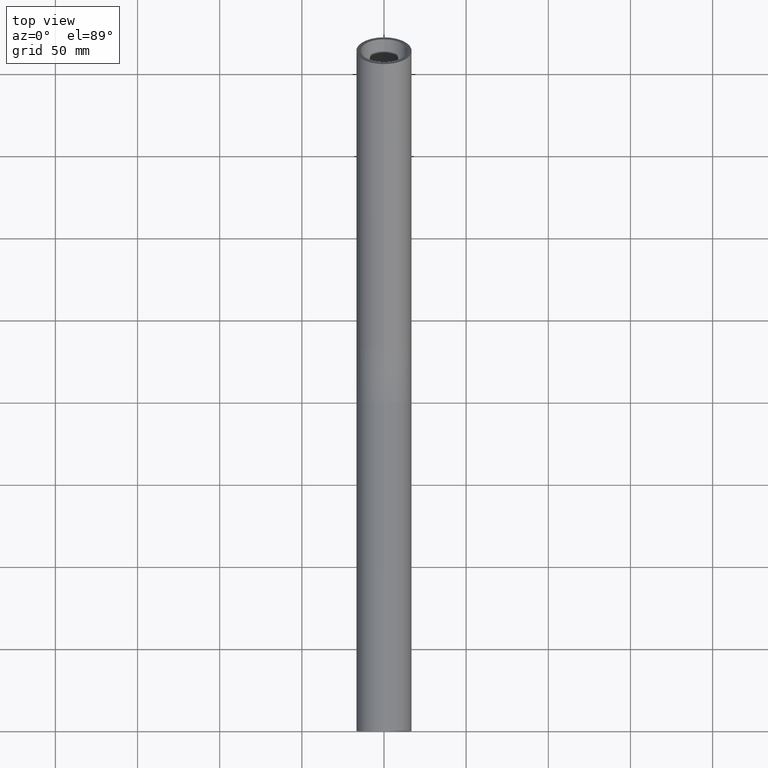
[diagram: clean part render]
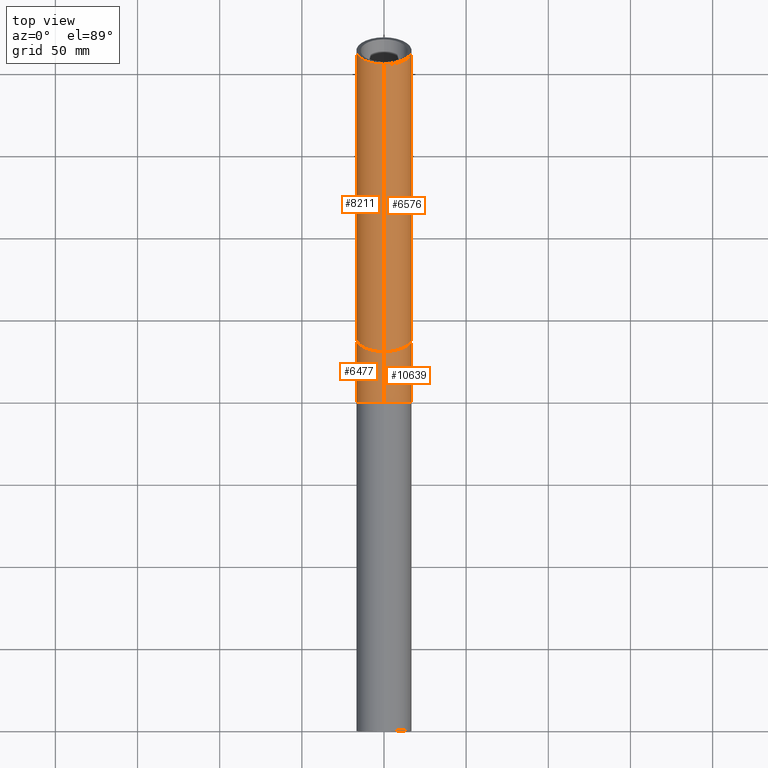
[diagram: same view with one multi-face feature highlighted, each face labeled with its STEP entity id]
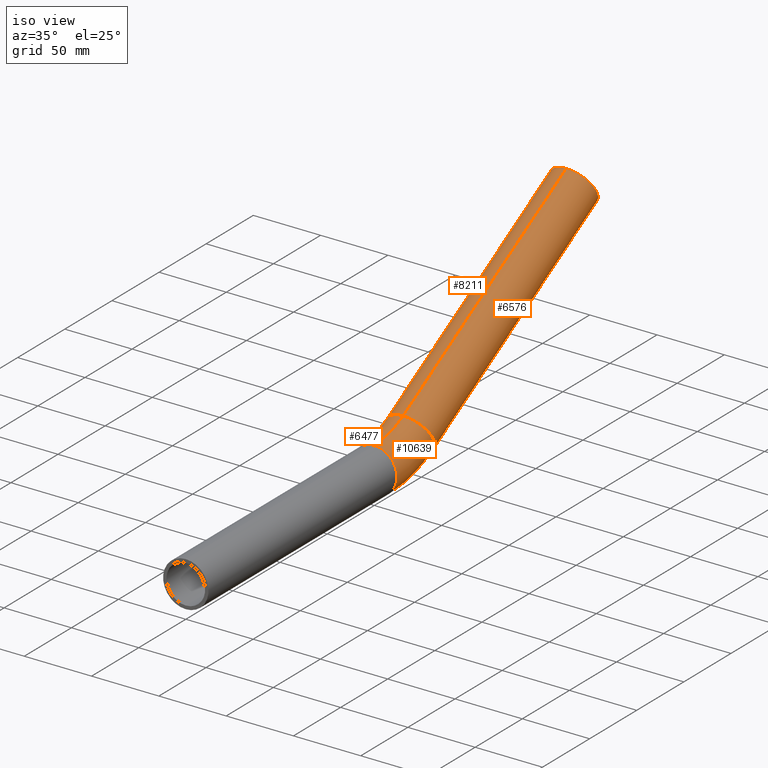
[diagram: same view with one multi-face feature highlighted, each face labeled with its STEP entity id]
A machine part, top view. The highlighted faces form ONE feature: a constant-radius fillet chain: 4 tangent blend faces with common blend radius 16.85 mm. The faces share edges in the B-rep.
A second angle (iso view) of the same feature is appended — it is thin or edge-on in the first view.
Their STEP definitions:
[1] entity #6477 (Torus):
#104 = DIRECTION ( 'NONE',  ( 1.000000000000000000, 0.0000000000000000000, 0.0000000000000000000 ) ) ;
#540 = EDGE_CURVE ( 'NONE', #3663, #10542, #5495, .T. ) ;
#1718 = EDGE_LOOP ( 'NONE', ( #8742, #1725, #10595, #5965 ) ) ;
#1725 = ORIENTED_EDGE ( 'NONE', *, *, #7093, .T. ) ;
#1768 = AXIS2_PLACEMENT_3D ( 'NONE', #6704, #2238, #8437 ) ;
#2199 = CARTESIAN_POINT ( 'NONE',  ( 0.0000000000000000000, 200.0000000000000000, -16.85000000000000100 ) ) ;
#2238 = DIRECTION ( 'NONE',  ( 0.0000000000000000000, 1.000000000000000000, 0.0000000000000000000 ) ) ;
#2245 = CIRCLE ( 'NONE', #1768, 16.85000000000000100 ) ;
#2836 = DIRECTION ( 'NONE',  ( 1.000000000000000000, 0.0000000000000000000, 0.0000000000000000000 ) ) ;
#3353 = TOROIDAL_SURFACE ( 'NONE', #11443, 78.00000000000000000, 16.85000000000000100 ) ;
#3417 = CARTESIAN_POINT ( 'NONE',  ( 0.0000000000000000000, 230.5750000000000700, 25.04254655858161600 ) ) ;
#3663 = VERTEX_POINT ( 'NONE', #6261 ) ;
#4562 = VERTEX_POINT ( 'NONE', #2199 ) ;
#4596 = CARTESIAN_POINT ( 'NONE',  ( 0.0000000000000000000, 200.0000000000000000, 78.00000000000000000 ) ) ;
#4645 = DIRECTION ( 'NONE',  ( 0.0000000000000000000, -0.5000000000000008900, 0.8660254037844380400 ) ) ;
#4872 = CIRCLE ( 'NONE', #11497, 94.85000000000000900 ) ;
#5411 = CIRCLE ( 'NONE', #7553, 16.85000000000000100 ) ;
#5463 = CARTESIAN_POINT ( 'NONE',  ( 0.0000000000000000000, 200.0000000000000000, 78.00000000000000000 ) ) ;
#5495 = CIRCLE ( 'NONE', #6186, 61.14999999999999900 ) ;
#5523 = DIRECTION ( 'NONE',  ( 0.0000000000000000000, 0.0000000000000000000, -1.000000000000000000 ) ) ;
#5965 = ORIENTED_EDGE ( 'NONE', *, *, #9974, .F. ) ;
#6186 = AXIS2_PLACEMENT_3D ( 'NONE', #8953, #2836, #5523 ) ;
#6261 = CARTESIAN_POINT ( 'NONE',  ( 2.063529856563290200E-015, 200.0000000000000000, 16.85000000000000100 ) ) ;
#6477 = ADVANCED_FACE ( 'NONE', ( #9038 ), #3353, .T. ) ;
#6704 = CARTESIAN_POINT ( 'NONE',  ( 0.0000000000000000000, 200.0000000000000000, 0.0000000000000000000 ) ) ;
#7093 = EDGE_CURVE ( 'NONE', #4562, #3663, #2245, .T. ) ;
#7553 = AXIS2_PLACEMENT_3D ( 'NONE', #9914, #9141, #4645 ) ;
#7677 = CARTESIAN_POINT ( 'NONE',  ( 2.063529856563290600E-015, 247.4250000000001300, -4.142509548953944100 ) ) ;
#8282 = DIRECTION ( 'NONE',  ( 0.0000000000000000000, 0.0000000000000000000, -1.000000000000000000 ) ) ;
#8437 = DIRECTION ( 'NONE',  ( 0.0000000000000000000, 0.0000000000000000000, 1.000000000000000000 ) ) ;
#8742 = ORIENTED_EDGE ( 'NONE', *, *, #10283, .F. ) ;
#8953 = CARTESIAN_POINT ( 'NONE',  ( -2.063529856563290200E-015, 200.0000000000000000, 78.00000000000000000 ) ) ;
#9038 = FACE_OUTER_BOUND ( 'NONE', #1718, .T. ) ;
#9141 = DIRECTION ( 'NONE',  ( 0.0000000000000000000, 0.8660254037844380400, 0.5000000000000011100 ) ) ;
#9895 = DIRECTION ( 'NONE',  ( 0.0000000000000000000, 0.0000000000000000000, -1.000000000000000000 ) ) ;
#9914 = CARTESIAN_POINT ( 'NONE',  ( 0.0000000000000000000, 239.0000000000001100, 10.45001850481383500 ) ) ;
#9934 = DIRECTION ( 'NONE',  ( 1.000000000000000000, 0.0000000000000000000, 0.0000000000000000000 ) ) ;
#9974 = EDGE_CURVE ( 'NONE', #11383, #10542, #5411, .T. ) ;
#10283 = EDGE_CURVE ( 'NONE', #4562, #11383, #4872, .T. ) ;
#10542 = VERTEX_POINT ( 'NONE', #3417 ) ;
#10595 = ORIENTED_EDGE ( 'NONE', *, *, #540, .T. ) ;
#11383 = VERTEX_POINT ( 'NONE', #7677 ) ;
#11443 = AXIS2_PLACEMENT_3D ( 'NONE', #4596, #9934, #8282 ) ;
#11497 = AXIS2_PLACEMENT_3D ( 'NONE', #5463, #104, #9895 ) ;
[2] entity #8211 (Cylinder):
#356 = CARTESIAN_POINT ( 'NONE',  ( 0.0000000000000000000, 230.5750000000000700, 25.04254655858161600 ) ) ;
#568 = DIRECTION ( 'NONE',  ( 0.0000000000000000000, -0.5000000000000008900, 0.8660254037844380400 ) ) ;
#603 = CARTESIAN_POINT ( 'NONE',  ( 0.0000000000000000000, 239.0000000000001100, 10.45001850481383500 ) ) ;
#671 = CARTESIAN_POINT ( 'NONE',  ( 0.0000000000000000000, 403.7800807568876300, 125.0425465585818800 ) ) ;
#854 = VECTOR ( 'NONE', #2312, 1000.000000000000200 ) ;
#1603 = DIRECTION ( 'NONE',  ( 0.0000000000000000000, 0.8660254037844380400, 0.5000000000000011100 ) ) ;
#2312 = DIRECTION ( 'NONE',  ( 0.0000000000000000000, 0.8660254037844378200, 0.5000000000000013300 ) ) ;
#2368 = DIRECTION ( 'NONE',  ( 0.0000000000000000000, 0.8660254037844378200, 0.5000000000000013300 ) ) ;
#2504 = FACE_OUTER_BOUND ( 'NONE', #7285, .T. ) ;
#2525 = ORIENTED_EDGE ( 'NONE', *, *, #9974, .T. ) ;
#2616 = ORIENTED_EDGE ( 'NONE', *, *, #10464, .F. ) ;
#3417 = CARTESIAN_POINT ( 'NONE',  ( 0.0000000000000000000, 230.5750000000000700, 25.04254655858161600 ) ) ;
#3460 = DIRECTION ( 'NONE',  ( 0.0000000000000000000, -0.5000000000000010000, 0.8660254037844380400 ) ) ;
#3890 = ORIENTED_EDGE ( 'NONE', *, *, #4176, .T. ) ;
#4176 = EDGE_CURVE ( 'NONE', #10542, #11068, #7537, .T. ) ;
#4372 = EDGE_CURVE ( 'NONE', #10818, #11068, #11140, .T. ) ;
#4645 = DIRECTION ( 'NONE',  ( 0.0000000000000000000, -0.5000000000000008900, 0.8660254037844380400 ) ) ;
#5132 = LINE ( 'NONE', #8706, #6521 ) ;
#5226 = AXIS2_PLACEMENT_3D ( 'NONE', #603, #2368, #568 ) ;
#5411 = CIRCLE ( 'NONE', #7553, 16.85000000000000100 ) ;
#6521 = VECTOR ( 'NONE', #9637, 1000.000000000000200 ) ;
#6951 = CARTESIAN_POINT ( 'NONE',  ( 0.0000000000000000000, 412.2050807568876400, 110.4500185048141100 ) ) ;
#7233 = ORIENTED_EDGE ( 'NONE', *, *, #4372, .F. ) ;
#7285 = EDGE_LOOP ( 'NONE', ( #2616, #2525, #3890, #7233 ) ) ;
#7537 = LINE ( 'NONE', #356, #854 ) ;
#7553 = AXIS2_PLACEMENT_3D ( 'NONE', #9914, #9141, #4645 ) ;
#7574 = AXIS2_PLACEMENT_3D ( 'NONE', #6951, #1603, #3460 ) ;
#7677 = CARTESIAN_POINT ( 'NONE',  ( 2.063529856563290600E-015, 247.4250000000001300, -4.142509548953944100 ) ) ;
#8127 = CARTESIAN_POINT ( 'NONE',  ( 2.063529856563290600E-015, 420.6300807568877100, 95.85749045104631700 ) ) ;
#8211 = ADVANCED_FACE ( 'NONE', ( #2504 ), #8733, .T. ) ;
#8706 = CARTESIAN_POINT ( 'NONE',  ( 2.063529856563290600E-015, 247.4250000000001300, -4.142509548953945900 ) ) ;
#8733 = CYLINDRICAL_SURFACE ( 'NONE', #5226, 16.85000000000000100 ) ;
#9141 = DIRECTION ( 'NONE',  ( 0.0000000000000000000, 0.8660254037844380400, 0.5000000000000011100 ) ) ;
#9637 = DIRECTION ( 'NONE',  ( 0.0000000000000000000, 0.8660254037844378200, 0.5000000000000013300 ) ) ;
#9914 = CARTESIAN_POINT ( 'NONE',  ( 0.0000000000000000000, 239.0000000000001100, 10.45001850481383500 ) ) ;
#9974 = EDGE_CURVE ( 'NONE', #11383, #10542, #5411, .T. ) ;
#10464 = EDGE_CURVE ( 'NONE', #11383, #10818, #5132, .T. ) ;
#10542 = VERTEX_POINT ( 'NONE', #3417 ) ;
#10818 = VERTEX_POINT ( 'NONE', #8127 ) ;
#11068 = VERTEX_POINT ( 'NONE', #671 ) ;
#11140 = CIRCLE ( 'NONE', #7574, 16.84999999999999400 ) ;
#11383 = VERTEX_POINT ( 'NONE', #7677 ) ;
[3] entity #6576 (Cylinder):
#56 = EDGE_LOOP ( 'NONE', ( #10862, #4067, #6885, #2541 ) ) ;
#126 = CIRCLE ( 'NONE', #6919, 16.85000000000000100 ) ;
#356 = CARTESIAN_POINT ( 'NONE',  ( 0.0000000000000000000, 230.5750000000000700, 25.04254655858161600 ) ) ;
#671 = CARTESIAN_POINT ( 'NONE',  ( 0.0000000000000000000, 403.7800807568876300, 125.0425465585818800 ) ) ;
#770 = DIRECTION ( 'NONE',  ( 0.0000000000000000000, -0.5000000000000008900, 0.8660254037844380400 ) ) ;
#854 = VECTOR ( 'NONE', #2312, 1000.000000000000200 ) ;
#1642 = DIRECTION ( 'NONE',  ( 0.0000000000000000000, -0.5000000000000010000, 0.8660254037844380400 ) ) ;
#2312 = DIRECTION ( 'NONE',  ( 0.0000000000000000000, 0.8660254037844378200, 0.5000000000000013300 ) ) ;
#2541 = ORIENTED_EDGE ( 'NONE', *, *, #4176, .F. ) ;
#2586 = AXIS2_PLACEMENT_3D ( 'NONE', #9531, #6909, #1642 ) ;
#2968 = CARTESIAN_POINT ( 'NONE',  ( 0.0000000000000000000, 239.0000000000001100, 10.45001850481383500 ) ) ;
#3417 = CARTESIAN_POINT ( 'NONE',  ( 0.0000000000000000000, 230.5750000000000700, 25.04254655858161600 ) ) ;
#3781 = CYLINDRICAL_SURFACE ( 'NONE', #4331, 16.85000000000000100 ) ;
#4067 = ORIENTED_EDGE ( 'NONE', *, *, #10464, .T. ) ;
#4176 = EDGE_CURVE ( 'NONE', #10542, #11068, #7537, .T. ) ;
#4331 = AXIS2_PLACEMENT_3D ( 'NONE', #8638, #8599, #770 ) ;
#5132 = LINE ( 'NONE', #8706, #6521 ) ;
#5656 = DIRECTION ( 'NONE',  ( 0.0000000000000000000, 0.8660254037844380400, 0.5000000000000011100 ) ) ;
#6521 = VECTOR ( 'NONE', #9637, 1000.000000000000200 ) ;
#6576 = ADVANCED_FACE ( 'NONE', ( #10269 ), #3781, .T. ) ;
#6885 = ORIENTED_EDGE ( 'NONE', *, *, #9858, .F. ) ;
#6909 = DIRECTION ( 'NONE',  ( 0.0000000000000000000, 0.8660254037844380400, 0.5000000000000011100 ) ) ;
#6919 = AXIS2_PLACEMENT_3D ( 'NONE', #2968, #5656, #10076 ) ;
#7266 = EDGE_CURVE ( 'NONE', #10542, #11383, #126, .T. ) ;
#7537 = LINE ( 'NONE', #356, #854 ) ;
#7677 = CARTESIAN_POINT ( 'NONE',  ( 2.063529856563290600E-015, 247.4250000000001300, -4.142509548953944100 ) ) ;
#8127 = CARTESIAN_POINT ( 'NONE',  ( 2.063529856563290600E-015, 420.6300807568877100, 95.85749045104631700 ) ) ;
#8599 = DIRECTION ( 'NONE',  ( 0.0000000000000000000, 0.8660254037844378200, 0.5000000000000013300 ) ) ;
#8638 = CARTESIAN_POINT ( 'NONE',  ( 0.0000000000000000000, 239.0000000000001100, 10.45001850481383500 ) ) ;
#8706 = CARTESIAN_POINT ( 'NONE',  ( 2.063529856563290600E-015, 247.4250000000001300, -4.142509548953945900 ) ) ;
#9531 = CARTESIAN_POINT ( 'NONE',  ( 0.0000000000000000000, 412.2050807568876400, 110.4500185048141100 ) ) ;
#9637 = DIRECTION ( 'NONE',  ( 0.0000000000000000000, 0.8660254037844378200, 0.5000000000000013300 ) ) ;
#9692 = CIRCLE ( 'NONE', #2586, 16.84999999999999400 ) ;
#9858 = EDGE_CURVE ( 'NONE', #11068, #10818, #9692, .T. ) ;
#10076 = DIRECTION ( 'NONE',  ( 0.0000000000000000000, -0.5000000000000008900, 0.8660254037844380400 ) ) ;
#10269 = FACE_OUTER_BOUND ( 'NONE', #56, .T. ) ;
#10464 = EDGE_CURVE ( 'NONE', #11383, #10818, #5132, .T. ) ;
#10542 = VERTEX_POINT ( 'NONE', #3417 ) ;
#10818 = VERTEX_POINT ( 'NONE', #8127 ) ;
#10862 = ORIENTED_EDGE ( 'NONE', *, *, #7266, .T. ) ;
#11068 = VERTEX_POINT ( 'NONE', #671 ) ;
#11383 = VERTEX_POINT ( 'NONE', #7677 ) ;
[4] entity #10639 (Torus):
#97 = FACE_OUTER_BOUND ( 'NONE', #4133, .T. ) ;
#104 = DIRECTION ( 'NONE',  ( 1.000000000000000000, 0.0000000000000000000, 0.0000000000000000000 ) ) ;
#126 = CIRCLE ( 'NONE', #6919, 16.85000000000000100 ) ;
#540 = EDGE_CURVE ( 'NONE', #3663, #10542, #5495, .T. ) ;
#950 = ORIENTED_EDGE ( 'NONE', *, *, #3362, .T. ) ;
#1842 = CIRCLE ( 'NONE', #6429, 16.85000000000000100 ) ;
#2199 = CARTESIAN_POINT ( 'NONE',  ( 0.0000000000000000000, 200.0000000000000000, -16.85000000000000100 ) ) ;
#2509 = CARTESIAN_POINT ( 'NONE',  ( 0.0000000000000000000, 200.0000000000000000, 78.00000000000000000 ) ) ;
#2610 = ORIENTED_EDGE ( 'NONE', *, *, #10283, .T. ) ;
#2836 = DIRECTION ( 'NONE',  ( 1.000000000000000000, 0.0000000000000000000, 0.0000000000000000000 ) ) ;
#2968 = CARTESIAN_POINT ( 'NONE',  ( 0.0000000000000000000, 239.0000000000001100, 10.45001850481383500 ) ) ;
#3362 = EDGE_CURVE ( 'NONE', #3663, #4562, #1842, .T. ) ;
#3417 = CARTESIAN_POINT ( 'NONE',  ( 0.0000000000000000000, 230.5750000000000700, 25.04254655858161600 ) ) ;
#3663 = VERTEX_POINT ( 'NONE', #6261 ) ;
#4133 = EDGE_LOOP ( 'NONE', ( #950, #2610, #10465, #5586 ) ) ;
#4562 = VERTEX_POINT ( 'NONE', #2199 ) ;
#4606 = TOROIDAL_SURFACE ( 'NONE', #9051, 78.00000000000000000, 16.85000000000000100 ) ;
#4872 = CIRCLE ( 'NONE', #11497, 94.85000000000000900 ) ;
#5463 = CARTESIAN_POINT ( 'NONE',  ( 0.0000000000000000000, 200.0000000000000000, 78.00000000000000000 ) ) ;
#5495 = CIRCLE ( 'NONE', #6186, 61.14999999999999900 ) ;
#5523 = DIRECTION ( 'NONE',  ( 0.0000000000000000000, 0.0000000000000000000, -1.000000000000000000 ) ) ;
#5586 = ORIENTED_EDGE ( 'NONE', *, *, #540, .F. ) ;
#5656 = DIRECTION ( 'NONE',  ( 0.0000000000000000000, 0.8660254037844380400, 0.5000000000000011100 ) ) ;
#5846 = CARTESIAN_POINT ( 'NONE',  ( 0.0000000000000000000, 200.0000000000000000, 0.0000000000000000000 ) ) ;
#6186 = AXIS2_PLACEMENT_3D ( 'NONE', #8953, #2836, #5523 ) ;
#6261 = CARTESIAN_POINT ( 'NONE',  ( 2.063529856563290200E-015, 200.0000000000000000, 16.85000000000000100 ) ) ;
#6330 = DIRECTION ( 'NONE',  ( 0.0000000000000000000, 0.0000000000000000000, -1.000000000000000000 ) ) ;
#6429 = AXIS2_PLACEMENT_3D ( 'NONE', #5846, #9320, #6739 ) ;
#6739 = DIRECTION ( 'NONE',  ( 0.0000000000000000000, 0.0000000000000000000, 1.000000000000000000 ) ) ;
#6919 = AXIS2_PLACEMENT_3D ( 'NONE', #2968, #5656, #10076 ) ;
#7266 = EDGE_CURVE ( 'NONE', #10542, #11383, #126, .T. ) ;
#7677 = CARTESIAN_POINT ( 'NONE',  ( 2.063529856563290600E-015, 247.4250000000001300, -4.142509548953944100 ) ) ;
#8864 = DIRECTION ( 'NONE',  ( 1.000000000000000000, 0.0000000000000000000, 0.0000000000000000000 ) ) ;
#8953 = CARTESIAN_POINT ( 'NONE',  ( -2.063529856563290200E-015, 200.0000000000000000, 78.00000000000000000 ) ) ;
#9051 = AXIS2_PLACEMENT_3D ( 'NONE', #2509, #8864, #6330 ) ;
#9320 = DIRECTION ( 'NONE',  ( 0.0000000000000000000, 1.000000000000000000, 0.0000000000000000000 ) ) ;
#9895 = DIRECTION ( 'NONE',  ( 0.0000000000000000000, 0.0000000000000000000, -1.000000000000000000 ) ) ;
#10076 = DIRECTION ( 'NONE',  ( 0.0000000000000000000, -0.5000000000000008900, 0.8660254037844380400 ) ) ;
#10283 = EDGE_CURVE ( 'NONE', #4562, #11383, #4872, .T. ) ;
#10465 = ORIENTED_EDGE ( 'NONE', *, *, #7266, .F. ) ;
#10542 = VERTEX_POINT ( 'NONE', #3417 ) ;
#10639 = ADVANCED_FACE ( 'NONE', ( #97 ), #4606, .T. ) ;
#11383 = VERTEX_POINT ( 'NONE', #7677 ) ;
#11497 = AXIS2_PLACEMENT_3D ( 'NONE', #5463, #104, #9895 ) ;